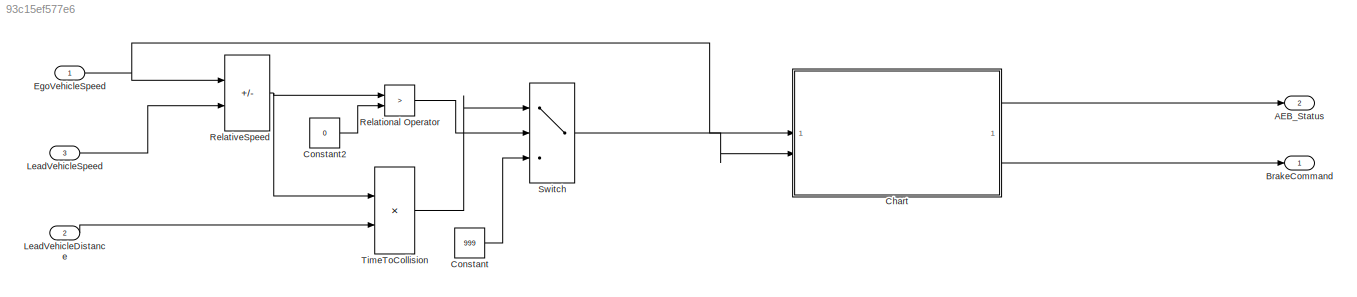
MODEL slx_93c15ef577e6
KIND model
CONFIG AbsTol = auto
CONFIG EnableMultiTasking = off
CONFIG FixedStep = 0.2
CONFIG MaxStep = auto
CONFIG MinStep = auto
CONFIG RelTol = 1e-3
CONFIG SampleTimeConstraint = Unconstrained
CONFIG SolverName = FixedStepAuto
CONFIG StartTime = 0.0
CONFIG StopTime = 10.0
BLOCK [Outport] AEB_Status
  Port = 2
BLOCK [Outport] BrakeCommand
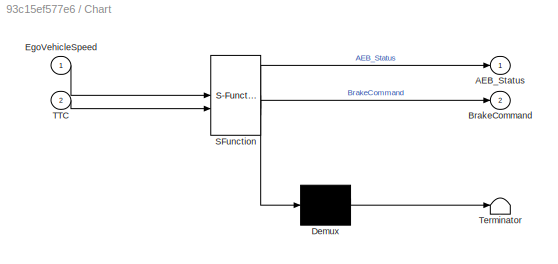
BLOCK [SubSystem] Chart
  ErrorFcn = Stateflow.Translate.translate
  PermitHierarchicalResolution = ExplicitOnly
  SFBlockType = Chart
  TreatAsAtomicUnit = on
BLOCK [Demux] Chart/ Demux 
  Outputs = 1
BLOCK [S-Function] Chart/ SFunction 
  EnableBusSupport = off
  FunctionName = sf_sfun
  PortCounts = [2 3]
  SFcnIsStateOwnerBlock = off
  SFunctionDeploymentMode = off
  Tag = Stateflow S-Function 3
BLOCK [Terminator] Chart/ Terminator 
BLOCK [Outport] Chart/AEB_Status
BLOCK [Outport] Chart/BrakeCommand
  Port = 2
BLOCK [Inport] Chart/EgoVehicleSpeed
BLOCK [Inport] Chart/TTC
  Port = 2
BLOCK [Constant] Constant
  Value = 999
BLOCK [Constant] Constant2
  Value = 0
BLOCK [Inport] EgoVehicleSpeed
BLOCK [Inport] LeadVehicleDistance
  Port = 2
BLOCK [Inport] LeadVehicleSpeed
  Port = 3
BLOCK [RelationalOperator] Relational Operator
  InputSameDT = off
  Operator = >
  OutDataTypeStr = boolean
  RndMeth = Simplest
BLOCK [Sum] RelativeSpeed
  IconShape = rectangular
  Inputs = +-
BLOCK [Switch] Switch
  Criteria = u2 > Threshold
  InputSameDT = off
  SaturateOnIntegerOverflow = off
BLOCK [Product] TimeToCollision
  Inputs = /*
LINE Chart:1 -> AEB_Status:1
LINE Chart:2 -> BrakeCommand:1
LINE Constant2:1 -> Relational Operator:2
LINE Constant:1 -> Switch:3
NET EgoVehicleSpeed:1 -> Chart:1, RelativeSpeed:1
LINE LeadVehicleDistance:1 -> TimeToCollision:2
LINE LeadVehicleSpeed:1 -> RelativeSpeed:2
LINE Relational Operator:1 -> Switch:2
NET RelativeSpeed:1 -> Relational Operator:1, TimeToCollision:1
LINE Switch:1 -> Chart:2
LINE TimeToCollision:1 -> Switch:1
note: NET lines group one-source signal fan-out (src -> all destinations, sorted); 1:1 wires keep LINE
CHART Chart states=3 transitions=4
  STATE_LABEL 'Safe\nentry: BrakeCommand = 0;\n AEB_Status = 0;'
  STATE_LABEL 'Warning\nentry: BrakeCommand = 0;\n AEB_Status = 1;'
  STATE_LABEL 'Braking\nentry: BrakeCommand = 1;\n AEB_Status = 2;'
CHART  states=0 transitions=0
